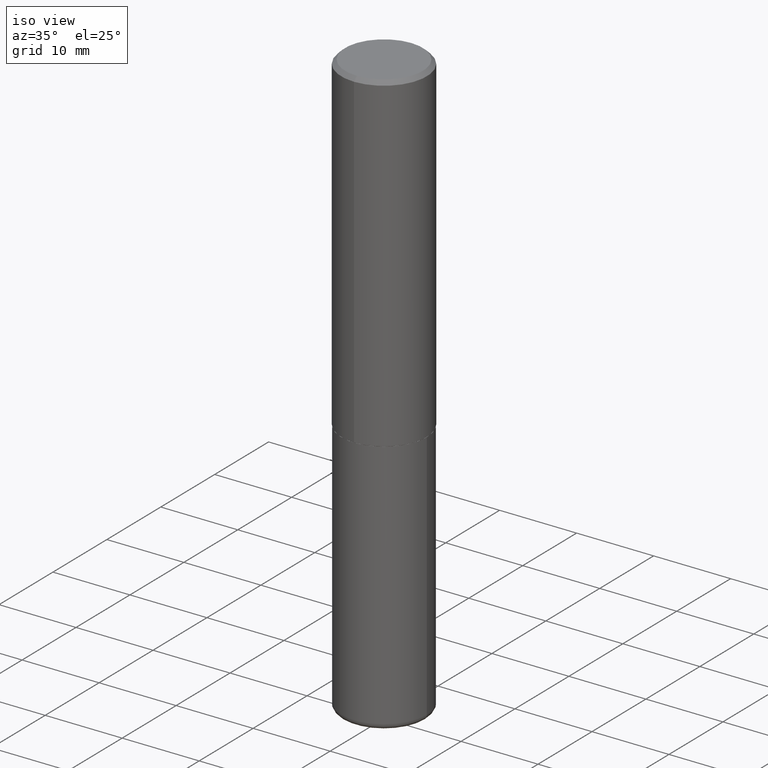
[diagram: clean part render]
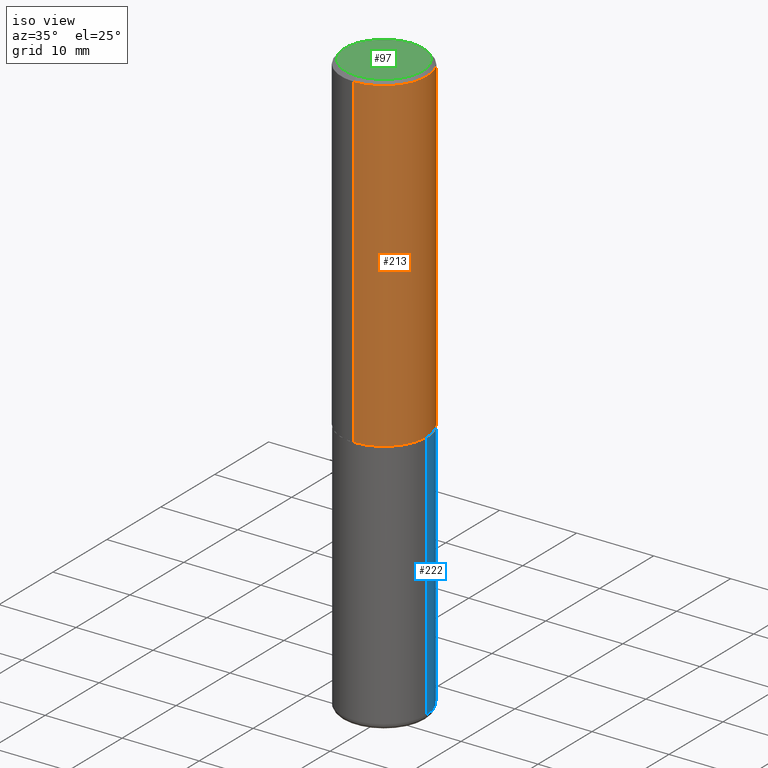
[diagram: same view with three faces highlighted in distinct colors, each labeled with its STEP entity id]
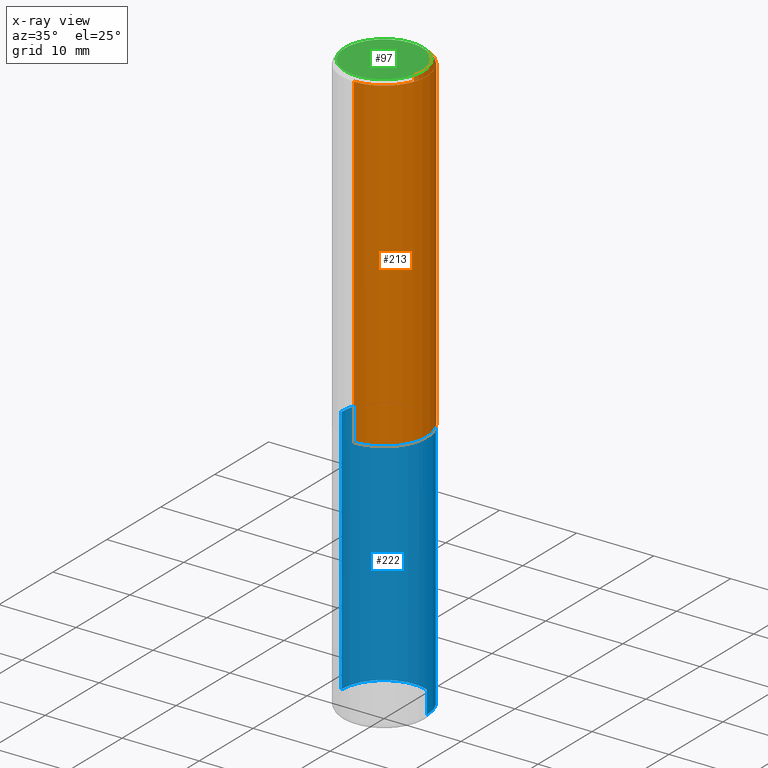
[diagram: x-ray of the same camera — body ghosted, the three highlighted faces saturated]
A machine part, iso view with three faces highlighted in distinct colors.
The next image is the same camera in x-ray (body ghosted, the three faces saturated) — at least one of them is partly hidden behind the body in this view.
Their STEP definitions:

[orange] entity #213 — the highlighted cylindrical surface (partial cylindrical patch) has radius 5.5563 mm, axis along (-0, 0, 1).
#16 = CIRCLE ( 'NONE', #354, 0.2187499999999999445 ) ;
#38 = CARTESIAN_POINT ( 'NONE',  ( 1.554312234475219551E-15, 0.2187500000000000833, -7.638914168873387857E-16 ) ) ;
#45 = VERTEX_POINT ( 'NONE', #187 ) ;
#74 = CARTESIAN_POINT ( 'NONE',  ( -1.527523085743871237E-15, -0.2187500000000000833, 7.638914168873387857E-16 ) ) ;
#95 = DIRECTION ( 'NONE',  ( -6.982962677686265922E-15, -1.000000000000000000, 3.492862791899308860E-15 ) ) ;
#100 = CARTESIAN_POINT ( 'NONE',  ( -1.527523085743831005E-15, -0.2187500000000061062, -1.686499999999999444 ) ) ;
#132 = EDGE_LOOP ( 'NONE', ( #367, #173, #262, #184 ) ) ;
#133 = CARTESIAN_POINT ( 'NONE',  ( 1.527523085743870843E-15, 0.2187499999999998890, -0.02000000000000081574 ) ) ;
#147 = AXIS2_PLACEMENT_3D ( 'NONE', #167, #303, #229 ) ;
#152 = EDGE_CURVE ( 'NONE', #171, #357, #16, .T. ) ;
#167 = CARTESIAN_POINT ( 'NONE',  ( 4.123583943477609610E-29, -5.889384569510841777E-15, -1.686500000000000110 ) ) ;
#170 = DIRECTION ( 'NONE',  ( -2.445054220858351343E-29, 3.492075048627833097E-15, 1.000000000000000000 ) ) ;
#171 = VERTEX_POINT ( 'NONE', #221 ) ;
#173 = ORIENTED_EDGE ( 'NONE', *, *, #372, .T. ) ;
#179 = CIRCLE ( 'NONE', #147, 0.2187500000000002220 ) ;
#184 = ORIENTED_EDGE ( 'NONE', *, *, #362, .F. ) ;
#187 = CARTESIAN_POINT ( 'NONE',  ( 1.554312234475240653E-15, 0.2187499999999943101, -1.686500000000000998 ) ) ;
#191 = CARTESIAN_POINT ( 'NONE',  ( 0.000000000000000000, 0.000000000000000000, 0.000000000000000000 ) ) ;
#202 = LINE ( 'NONE', #38, #337 ) ;
#206 = VERTEX_POINT ( 'NONE', #100 ) ;
#213 = ADVANCED_FACE ( 'NONE', ( #249 ), #224, .T. ) ;
#221 = CARTESIAN_POINT ( 'NONE',  ( -1.500733937012521346E-15, -0.2187500000000000278, -0.01999999999999928571 ) ) ;
#224 = CYLINDRICAL_SURFACE ( 'NONE', #360, 0.2187500000000000833 ) ;
#229 = DIRECTION ( 'NONE',  ( -6.982962677686265922E-15, -1.000000000000000000, 3.746534391310985612E-15 ) ) ;
#236 = DIRECTION ( 'NONE',  ( -2.445054220858351343E-29, 3.492075048627833097E-15, 1.000000000000000000 ) ) ;
#249 = FACE_OUTER_BOUND ( 'NONE', #132, .T. ) ;
#262 = ORIENTED_EDGE ( 'NONE', *, *, #152, .F. ) ;
#303 = DIRECTION ( 'NONE',  ( -2.445054220858351343E-29, 3.492075048627833097E-15, 1.000000000000000000 ) ) ;
#308 = VECTOR ( 'NONE', #236, 39.37007874015748143 ) ;
#330 = LINE ( 'NONE', #74, #308 ) ;
#337 = VECTOR ( 'NONE', #170, 39.37007874015748143 ) ;
#346 = EDGE_CURVE ( 'NONE', #206, #45, #179, .T. ) ;
#354 = AXIS2_PLACEMENT_3D ( 'NONE', #385, #377, #95 ) ;
#355 = DIRECTION ( 'NONE',  ( -2.445054220858351343E-29, 3.492075048627833097E-15, 1.000000000000000000 ) ) ;
#357 = VERTEX_POINT ( 'NONE', #133 ) ;
#360 = AXIS2_PLACEMENT_3D ( 'NONE', #191, #355, #382 ) ;
#362 = EDGE_CURVE ( 'NONE', #206, #171, #330, .T. ) ;
#367 = ORIENTED_EDGE ( 'NONE', *, *, #346, .T. ) ;
#372 = EDGE_CURVE ( 'NONE', #45, #357, #202, .T. ) ;
#377 = DIRECTION ( 'NONE',  ( -2.445054220858351343E-29, 3.492075048627833097E-15, 1.000000000000000000 ) ) ;
#382 = DIRECTION ( 'NONE',  ( -6.982962677686265922E-15, -1.000000000000000000, 3.492075048627833097E-15 ) ) ;
#385 = CARTESIAN_POINT ( 'NONE',  ( 4.890108441716715262E-31, -6.984150097255683598E-17, -0.02000000000000005246 ) ) ;

[blue] entity #222 — the highlighted cylindrical surface (partial cylindrical patch) has radius 5.5563 mm, axis along (-0, 0, 1).
#2 = CIRCLE ( 'NONE', #390, 0.2187500000000000278 ) ;
#23 = DIRECTION ( 'NONE',  ( -2.445468806185136597E-29, 3.491481338843145583E-15, 1.000000000000000000 ) ) ;
#24 = DIRECTION ( 'NONE',  ( 1.000000000000000000, -6.982962677686266711E-15, 4.876176775795935232E-29 ) ) ;
#36 = CARTESIAN_POINT ( 'NONE',  ( 0.2187500000000000000, -7.419397845041678890E-15, -1.687500000000000222 ) ) ;
#61 = CARTESIAN_POINT ( 'NONE',  ( -0.2187500000000000000, -6.576474933355756753E-15, -1.687500000000000222 ) ) ;
#66 = CARTESIAN_POINT ( 'NONE',  ( 0.2187500000000001665, -1.189722266210801619E-14, -2.970000000000000195 ) ) ;
#77 = CARTESIAN_POINT ( 'NONE',  ( 4.126728610437418568E-29, -5.891874759297808836E-15, -1.687500000000000222 ) ) ;
#88 = CIRCLE ( 'NONE', #267, 0.2187500000000000000 ) ;
#91 = ORIENTED_EDGE ( 'NONE', *, *, #409, .F. ) ;
#99 = DIRECTION ( 'NONE',  ( 1.000000000000000000, -6.982962677686271444E-15, 0.000000000000000000 ) ) ;
#126 = LINE ( 'NONE', #315, #252 ) ;
#166 = DIRECTION ( 'NONE',  ( -2.445468806185136877E-29, 3.491481338843145188E-15, 1.000000000000000000 ) ) ;
#177 = VERTEX_POINT ( 'NONE', #61 ) ;
#195 = DIRECTION ( 'NONE',  ( -2.445468806185136877E-29, 3.491481338843145188E-15, 1.000000000000000000 ) ) ;
#196 = CARTESIAN_POINT ( 'NONE',  ( -0.2187500000000000278, 1.554312234475219354E-15, -1.076017050993260762E-29 ) ) ;
#200 = VERTEX_POINT ( 'NONE', #418 ) ;
#207 = DIRECTION ( 'NONE',  ( 1.000000000000000000, -6.982962677686267499E-15, 0.000000000000000000 ) ) ;
#209 = EDGE_LOOP ( 'NONE', ( #273, #366, #91, #299 ) ) ;
#222 = ADVANCED_FACE ( 'NONE', ( #325 ), #415, .T. ) ;
#226 = DIRECTION ( 'NONE',  ( -2.445468806185136597E-29, 3.491481338843145583E-15, 1.000000000000000000 ) ) ;
#238 = VECTOR ( 'NONE', #166, 39.37007874015748143 ) ;
#243 = VERTEX_POINT ( 'NONE', #66 ) ;
#252 = VECTOR ( 'NONE', #195, 39.37007874015748143 ) ;
#255 = EDGE_CURVE ( 'NONE', #243, #200, #2, .T. ) ;
#260 = EDGE_CURVE ( 'NONE', #243, #326, #126, .T. ) ;
#261 = LINE ( 'NONE', #196, #238 ) ;
#267 = AXIS2_PLACEMENT_3D ( 'NONE', #77, #312, #207 ) ;
#273 = ORIENTED_EDGE ( 'NONE', *, *, #255, .T. ) ;
#284 = CARTESIAN_POINT ( 'NONE',  ( 7.263042354369856275E-29, -1.036969957636414298E-14, -2.970000000000000195 ) ) ;
#299 = ORIENTED_EDGE ( 'NONE', *, *, #260, .F. ) ;
#312 = DIRECTION ( 'NONE',  ( -2.445468806185136597E-29, 3.491481338843145583E-15, 1.000000000000000000 ) ) ;
#315 = CARTESIAN_POINT ( 'NONE',  ( 0.2187500000000000278, -1.527523085743871040E-15, 1.066663669705361025E-29 ) ) ;
#316 = CARTESIAN_POINT ( 'NONE',  ( 0.000000000000000000, 0.000000000000000000, 0.000000000000000000 ) ) ;
#317 = EDGE_CURVE ( 'NONE', #200, #177, #261, .T. ) ;
#325 = FACE_OUTER_BOUND ( 'NONE', #209, .T. ) ;
#326 = VERTEX_POINT ( 'NONE', #36 ) ;
#366 = ORIENTED_EDGE ( 'NONE', *, *, #317, .T. ) ;
#390 = AXIS2_PLACEMENT_3D ( 'NONE', #284, #23, #99 ) ;
#409 = EDGE_CURVE ( 'NONE', #326, #177, #88, .T. ) ;
#413 = AXIS2_PLACEMENT_3D ( 'NONE', #316, #226, #24 ) ;
#415 = CYLINDRICAL_SURFACE ( 'NONE', #413, 0.2187500000000000278 ) ;
#418 = CARTESIAN_POINT ( 'NONE',  ( -0.2187500000000001665, -8.815387341888922250E-15, -2.970000000000000195 ) ) ;

[green] entity #97 — the highlighted planar face has unit normal (0, -0, -1).
#4 = ORIENTED_EDGE ( 'NONE', *, *, #128, .T. ) ;
#8 = AXIS2_PLACEMENT_3D ( 'NONE', #125, #416, #67 ) ;
#37 = EDGE_LOOP ( 'NONE', ( #204, #4 ) ) ;
#48 = PLANE ( 'NONE',  #397 ) ;
#67 = DIRECTION ( 'NONE',  ( -6.982962677686265133E-15, -1.000000000000000000, 3.492075048627833097E-15 ) ) ;
#84 = CARTESIAN_POINT ( 'NONE',  ( 1.387863832190145233E-15, 0.1987500000000000100, -7.196019909455309833E-16 ) ) ;
#97 = ADVANCED_FACE ( 'NONE', ( #241 ), #48, .F. ) ;
#111 = EDGE_CURVE ( 'NONE', #283, #295, #193, .T. ) ;
#119 = DIRECTION ( 'NONE',  ( -2.445054220858351343E-29, 3.492075048627833097E-15, 1.000000000000000000 ) ) ;
#125 = CARTESIAN_POINT ( 'NONE',  ( 1.249524178112448832E-45, -1.784595273110905928E-31, -5.110415006149825816E-17 ) ) ;
#128 = EDGE_CURVE ( 'NONE', #295, #283, #373, .T. ) ;
#163 = CARTESIAN_POINT ( 'NONE',  ( 1.457693458967008136E-15, 0.1987500000000000100, -7.451540659762801031E-16 ) ) ;
#188 = AXIS2_PLACEMENT_3D ( 'NONE', #279, #119, #292 ) ;
#193 = CIRCLE ( 'NONE', #188, 0.1987500000000000100 ) ;
#204 = ORIENTED_EDGE ( 'NONE', *, *, #111, .T. ) ;
#228 = CARTESIAN_POINT ( 'NONE',  ( -1.432128957034806803E-15, -0.1987500000000000100, 6.429457658532835252E-16 ) ) ;
#241 = FACE_OUTER_BOUND ( 'NONE', #37, .T. ) ;
#279 = CARTESIAN_POINT ( 'NONE',  ( 1.249524178112448832E-45, -1.784595273110905928E-31, -5.110415006149825816E-17 ) ) ;
#283 = VERTEX_POINT ( 'NONE', #163 ) ;
#292 = DIRECTION ( 'NONE',  ( -6.982962677686265133E-15, -1.000000000000000000, 3.492075048627833097E-15 ) ) ;
#295 = VERTEX_POINT ( 'NONE', #228 ) ;
#311 = DIRECTION ( 'NONE',  ( 6.982962677686265922E-15, 1.000000000000000000, -3.492075048627833097E-15 ) ) ;
#373 = CIRCLE ( 'NONE', #8, 0.1987500000000000100 ) ;
#397 = AXIS2_PLACEMENT_3D ( 'NONE', #84, #400, #311 ) ;
#400 = DIRECTION ( 'NONE',  ( 2.445054220858351343E-29, -3.492075048627833097E-15, -1.000000000000000000 ) ) ;
#416 = DIRECTION ( 'NONE',  ( -2.445054220858351343E-29, 3.492075048627833097E-15, 1.000000000000000000 ) ) ;